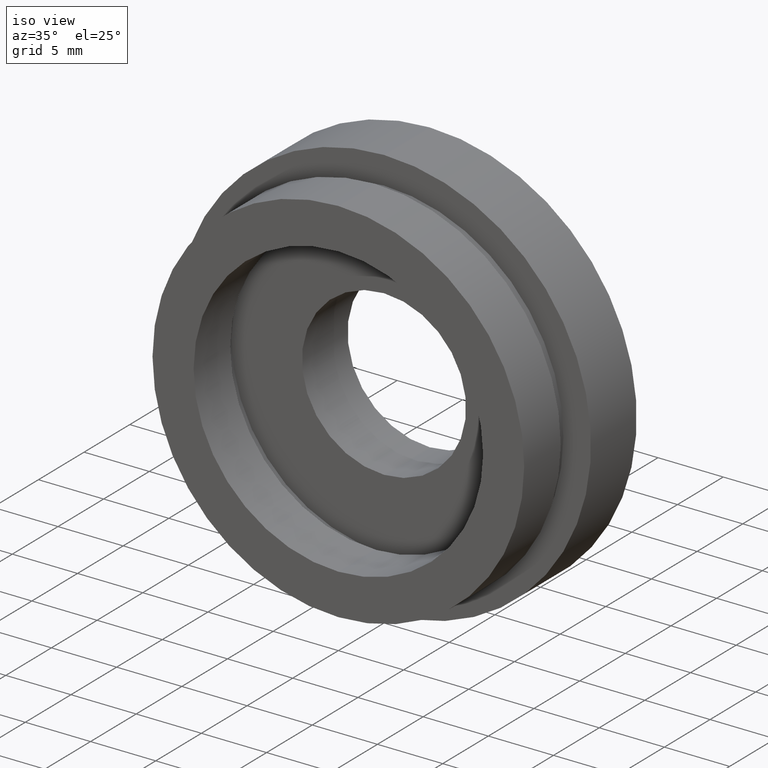
[diagram: clean part render]
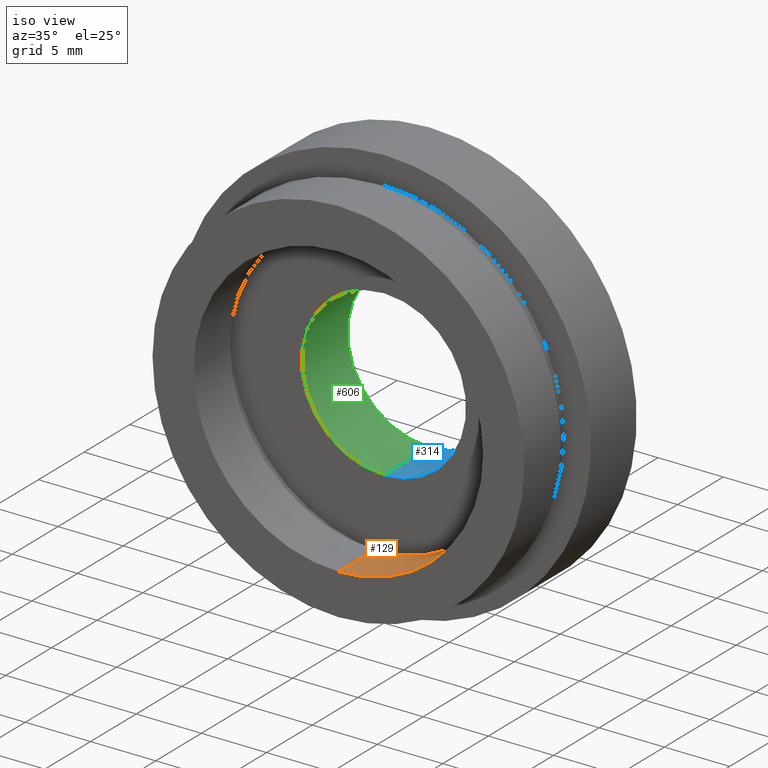
[diagram: same view with three faces highlighted in distinct colors, each labeled with its STEP entity id]
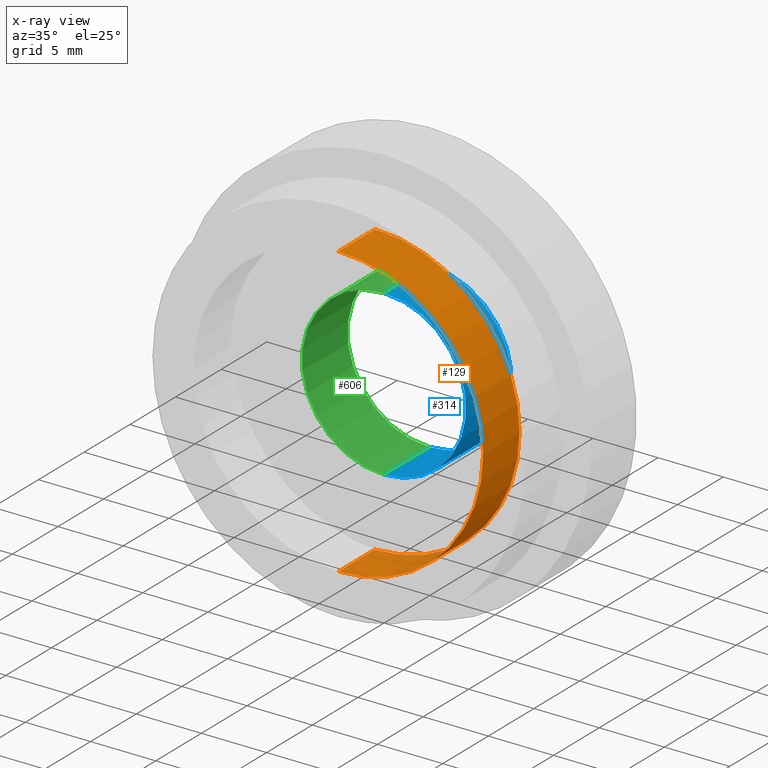
[diagram: x-ray of the same camera — body ghosted, the three highlighted faces saturated]
A machine part, iso view with three faces highlighted in distinct colors.
The next image is the same camera in x-ray (body ghosted, the three faces saturated) — at least one of them is partly hidden behind the body in this view.
Their STEP definitions:

[orange] entity #129 — the highlighted cylindrical surface (partial cylindrical patch) has radius 11.1 mm, axis along (-0, 1, -0).
#20 = ORIENTED_EDGE ( 'NONE', *, *, #133, .F. ) ;
#23 = CARTESIAN_POINT ( 'NONE',  ( 0.0000000000000000000, 0.0000000000000000000, 11.10000000000000100 ) ) ;
#28 = AXIS2_PLACEMENT_3D ( 'NONE', #30, #558, #411 ) ;
#30 = CARTESIAN_POINT ( 'NONE',  ( 0.0000000000000000000, 13.74468085106383300, 0.0000000000000000000 ) ) ;
#73 = EDGE_CURVE ( 'NONE', #280, #184, #104, .T. ) ;
#95 = CIRCLE ( 'NONE', #619, 11.10000000000000100 ) ;
#104 = LINE ( 'NONE', #191, #615 ) ;
#119 = DIRECTION ( 'NONE',  ( -0.0000000000000000000, 1.000000000000000000, -0.0000000000000000000 ) ) ;
#125 = FACE_OUTER_BOUND ( 'NONE', #511, .T. ) ;
#129 = ADVANCED_FACE ( 'NONE', ( #125 ), #481, .F. ) ;
#133 = EDGE_CURVE ( 'NONE', #213, #280, #95, .T. ) ;
#144 = DIRECTION ( 'NONE',  ( 0.0000000000000000000, 0.0000000000000000000, 1.000000000000000000 ) ) ;
#184 = VERTEX_POINT ( 'NONE', #503 ) ;
#191 = CARTESIAN_POINT ( 'NONE',  ( 1.359357947053562400E-015, 13.74468085106383300, -11.10000000000000100 ) ) ;
#196 = EDGE_CURVE ( 'NONE', #213, #200, #205, .T. ) ;
#200 = VERTEX_POINT ( 'NONE', #400 ) ;
#205 = LINE ( 'NONE', #449, #325 ) ;
#213 = VERTEX_POINT ( 'NONE', #23 ) ;
#239 = DIRECTION ( 'NONE',  ( 0.0000000000000000000, 0.0000000000000000000, 1.000000000000000000 ) ) ;
#280 = VERTEX_POINT ( 'NONE', #585 ) ;
#283 = CARTESIAN_POINT ( 'NONE',  ( 0.0000000000000000000, 0.0000000000000000000, 0.0000000000000000000 ) ) ;
#319 = CIRCLE ( 'NONE', #430, 11.10000000000000100 ) ;
#325 = VECTOR ( 'NONE', #119, 1000.000000000000000 ) ;
#367 = EDGE_CURVE ( 'NONE', #200, #184, #319, .T. ) ;
#394 = ORIENTED_EDGE ( 'NONE', *, *, #73, .F. ) ;
#400 = CARTESIAN_POINT ( 'NONE',  ( 0.0000000000000000000, 4.000000000000000000, 11.10000000000000100 ) ) ;
#411 = DIRECTION ( 'NONE',  ( 0.0000000000000000000, 0.0000000000000000000, 1.000000000000000000 ) ) ;
#430 = AXIS2_PLACEMENT_3D ( 'NONE', #495, #531, #239 ) ;
#431 = DIRECTION ( 'NONE',  ( -0.0000000000000000000, 1.000000000000000000, -0.0000000000000000000 ) ) ;
#449 = CARTESIAN_POINT ( 'NONE',  ( 0.0000000000000000000, 13.74468085106383300, 11.10000000000000100 ) ) ;
#464 = ORIENTED_EDGE ( 'NONE', *, *, #196, .T. ) ;
#481 = CYLINDRICAL_SURFACE ( 'NONE', #28, 11.10000000000000100 ) ;
#495 = CARTESIAN_POINT ( 'NONE',  ( 0.0000000000000000000, 4.000000000000000000, 0.0000000000000000000 ) ) ;
#503 = CARTESIAN_POINT ( 'NONE',  ( 1.359357947053562400E-015, 4.000000000000000000, -11.10000000000000100 ) ) ;
#511 = EDGE_LOOP ( 'NONE', ( #394, #20, #464, #534 ) ) ;
#531 = DIRECTION ( 'NONE',  ( -0.0000000000000000000, 1.000000000000000000, -0.0000000000000000000 ) ) ;
#534 = ORIENTED_EDGE ( 'NONE', *, *, #367, .T. ) ;
#558 = DIRECTION ( 'NONE',  ( -0.0000000000000000000, 1.000000000000000000, -0.0000000000000000000 ) ) ;
#576 = DIRECTION ( 'NONE',  ( -0.0000000000000000000, 1.000000000000000000, -0.0000000000000000000 ) ) ;
#585 = CARTESIAN_POINT ( 'NONE',  ( 1.359357947053562400E-015, 0.0000000000000000000, -11.10000000000000100 ) ) ;
#615 = VECTOR ( 'NONE', #431, 1000.000000000000000 ) ;
#619 = AXIS2_PLACEMENT_3D ( 'NONE', #283, #576, #144 ) ;

[blue] entity #314 — the highlighted cylindrical surface (partial cylindrical patch) has radius 6.295 mm, axis along (-0, 1, -0).
#2 = DIRECTION ( 'NONE',  ( -0.0000000000000000000, 1.000000000000000000, -0.0000000000000000000 ) ) ;
#6 = EDGE_CURVE ( 'NONE', #178, #57, #485, .T. ) ;
#11 = ORIENTED_EDGE ( 'NONE', *, *, #438, .T. ) ;
#15 = CARTESIAN_POINT ( 'NONE',  ( 0.0000000000000000000, 13.74468085106383300, 0.0000000000000000000 ) ) ;
#46 = DIRECTION ( 'NONE',  ( -0.0000000000000000000, 1.000000000000000000, -0.0000000000000000000 ) ) ;
#57 = VERTEX_POINT ( 'NONE', #479 ) ;
#74 = CARTESIAN_POINT ( 'NONE',  ( 7.709151600632590500E-016, 4.999999999999999100, -6.295000000000001700 ) ) ;
#105 = EDGE_CURVE ( 'NONE', #146, #165, #358, .T. ) ;
#106 = EDGE_LOOP ( 'NONE', ( #150, #455, #114, #11 ) ) ;
#114 = ORIENTED_EDGE ( 'NONE', *, *, #105, .T. ) ;
#124 = DIRECTION ( 'NONE',  ( 0.0000000000000000000, 0.0000000000000000000, 1.000000000000000000 ) ) ;
#146 = VERTEX_POINT ( 'NONE', #326 ) ;
#150 = ORIENTED_EDGE ( 'NONE', *, *, #6, .F. ) ;
#165 = VERTEX_POINT ( 'NONE', #167 ) ;
#167 = CARTESIAN_POINT ( 'NONE',  ( 0.0000000000000000000, 10.00000000000000000, 6.295000000000001700 ) ) ;
#178 = VERTEX_POINT ( 'NONE', #74 ) ;
#180 = DIRECTION ( 'NONE',  ( -0.0000000000000000000, 1.000000000000000000, -0.0000000000000000000 ) ) ;
#185 = CARTESIAN_POINT ( 'NONE',  ( 0.0000000000000000000, 10.00000000000000000, 0.0000000000000000000 ) ) ;
#189 = AXIS2_PLACEMENT_3D ( 'NONE', #185, #46, #478 ) ;
#193 = CARTESIAN_POINT ( 'NONE',  ( 0.0000000000000000000, 13.74468085106383300, 6.295000000000001700 ) ) ;
#231 = CIRCLE ( 'NONE', #189, 6.295000000000001700 ) ;
#238 = FACE_OUTER_BOUND ( 'NONE', #106, .T. ) ;
#244 = DIRECTION ( 'NONE',  ( -0.0000000000000000000, 1.000000000000000000, -0.0000000000000000000 ) ) ;
#289 = CIRCLE ( 'NONE', #527, 6.295000000000001700 ) ;
#314 = ADVANCED_FACE ( 'NONE', ( #238 ), #566, .F. ) ;
#326 = CARTESIAN_POINT ( 'NONE',  ( 0.0000000000000000000, 4.999999999999999100, 6.295000000000001700 ) ) ;
#358 = LINE ( 'NONE', #193, #622 ) ;
#371 = EDGE_CURVE ( 'NONE', #146, #178, #289, .T. ) ;
#389 = CARTESIAN_POINT ( 'NONE',  ( 7.709151600632590500E-016, 13.74468085106383300, -6.295000000000001700 ) ) ;
#392 = DIRECTION ( 'NONE',  ( -0.0000000000000000000, 1.000000000000000000, -0.0000000000000000000 ) ) ;
#397 = AXIS2_PLACEMENT_3D ( 'NONE', #15, #392, #124 ) ;
#438 = EDGE_CURVE ( 'NONE', #165, #57, #231, .T. ) ;
#455 = ORIENTED_EDGE ( 'NONE', *, *, #371, .F. ) ;
#478 = DIRECTION ( 'NONE',  ( 0.0000000000000000000, 0.0000000000000000000, 1.000000000000000000 ) ) ;
#479 = CARTESIAN_POINT ( 'NONE',  ( 7.709151600632590500E-016, 10.00000000000000000, -6.295000000000001700 ) ) ;
#485 = LINE ( 'NONE', #389, #610 ) ;
#519 = DIRECTION ( 'NONE',  ( 0.0000000000000000000, 0.0000000000000000000, 1.000000000000000000 ) ) ;
#527 = AXIS2_PLACEMENT_3D ( 'NONE', #567, #180, #519 ) ;
#566 = CYLINDRICAL_SURFACE ( 'NONE', #397, 6.295000000000001700 ) ;
#567 = CARTESIAN_POINT ( 'NONE',  ( 0.0000000000000000000, 4.999999999999999100, 0.0000000000000000000 ) ) ;
#610 = VECTOR ( 'NONE', #244, 1000.000000000000000 ) ;
#622 = VECTOR ( 'NONE', #2, 1000.000000000000000 ) ;

[green] entity #606 — the highlighted cylindrical surface (partial cylindrical patch) has radius 6.295 mm, axis along (-0, 1, -0).
#2 = DIRECTION ( 'NONE',  ( -0.0000000000000000000, 1.000000000000000000, -0.0000000000000000000 ) ) ;
#6 = EDGE_CURVE ( 'NONE', #178, #57, #485, .T. ) ;
#32 = EDGE_LOOP ( 'NONE', ( #482, #405, #329, #128 ) ) ;
#57 = VERTEX_POINT ( 'NONE', #479 ) ;
#74 = CARTESIAN_POINT ( 'NONE',  ( 7.709151600632590500E-016, 4.999999999999999100, -6.295000000000001700 ) ) ;
#83 = AXIS2_PLACEMENT_3D ( 'NONE', #494, #156, #445 ) ;
#105 = EDGE_CURVE ( 'NONE', #146, #165, #358, .T. ) ;
#116 = CYLINDRICAL_SURFACE ( 'NONE', #179, 6.295000000000001700 ) ;
#128 = ORIENTED_EDGE ( 'NONE', *, *, #105, .F. ) ;
#146 = VERTEX_POINT ( 'NONE', #326 ) ;
#152 = DIRECTION ( 'NONE',  ( -0.0000000000000000000, 1.000000000000000000, -0.0000000000000000000 ) ) ;
#156 = DIRECTION ( 'NONE',  ( -0.0000000000000000000, 1.000000000000000000, -0.0000000000000000000 ) ) ;
#165 = VERTEX_POINT ( 'NONE', #167 ) ;
#167 = CARTESIAN_POINT ( 'NONE',  ( 0.0000000000000000000, 10.00000000000000000, 6.295000000000001700 ) ) ;
#178 = VERTEX_POINT ( 'NONE', #74 ) ;
#179 = AXIS2_PLACEMENT_3D ( 'NONE', #241, #152, #538 ) ;
#193 = CARTESIAN_POINT ( 'NONE',  ( 0.0000000000000000000, 13.74468085106383300, 6.295000000000001700 ) ) ;
#220 = DIRECTION ( 'NONE',  ( 0.0000000000000000000, 0.0000000000000000000, 1.000000000000000000 ) ) ;
#228 = EDGE_CURVE ( 'NONE', #178, #146, #254, .T. ) ;
#230 = CARTESIAN_POINT ( 'NONE',  ( 0.0000000000000000000, 10.00000000000000000, 0.0000000000000000000 ) ) ;
#241 = CARTESIAN_POINT ( 'NONE',  ( 0.0000000000000000000, 13.74468085106383300, 0.0000000000000000000 ) ) ;
#244 = DIRECTION ( 'NONE',  ( -0.0000000000000000000, 1.000000000000000000, -0.0000000000000000000 ) ) ;
#254 = CIRCLE ( 'NONE', #83, 6.295000000000001700 ) ;
#296 = CIRCLE ( 'NONE', #486, 6.295000000000001700 ) ;
#312 = FACE_OUTER_BOUND ( 'NONE', #32, .T. ) ;
#326 = CARTESIAN_POINT ( 'NONE',  ( 0.0000000000000000000, 4.999999999999999100, 6.295000000000001700 ) ) ;
#329 = ORIENTED_EDGE ( 'NONE', *, *, #563, .T. ) ;
#358 = LINE ( 'NONE', #193, #622 ) ;
#389 = CARTESIAN_POINT ( 'NONE',  ( 7.709151600632590500E-016, 13.74468085106383300, -6.295000000000001700 ) ) ;
#405 = ORIENTED_EDGE ( 'NONE', *, *, #6, .T. ) ;
#445 = DIRECTION ( 'NONE',  ( 0.0000000000000000000, 0.0000000000000000000, 1.000000000000000000 ) ) ;
#479 = CARTESIAN_POINT ( 'NONE',  ( 7.709151600632590500E-016, 10.00000000000000000, -6.295000000000001700 ) ) ;
#482 = ORIENTED_EDGE ( 'NONE', *, *, #228, .F. ) ;
#485 = LINE ( 'NONE', #389, #610 ) ;
#486 = AXIS2_PLACEMENT_3D ( 'NONE', #230, #533, #220 ) ;
#494 = CARTESIAN_POINT ( 'NONE',  ( 0.0000000000000000000, 4.999999999999999100, 0.0000000000000000000 ) ) ;
#533 = DIRECTION ( 'NONE',  ( -0.0000000000000000000, 1.000000000000000000, -0.0000000000000000000 ) ) ;
#538 = DIRECTION ( 'NONE',  ( 0.0000000000000000000, 0.0000000000000000000, 1.000000000000000000 ) ) ;
#563 = EDGE_CURVE ( 'NONE', #57, #165, #296, .T. ) ;
#606 = ADVANCED_FACE ( 'NONE', ( #312 ), #116, .F. ) ;
#610 = VECTOR ( 'NONE', #244, 1000.000000000000000 ) ;
#622 = VECTOR ( 'NONE', #2, 1000.000000000000000 ) ;